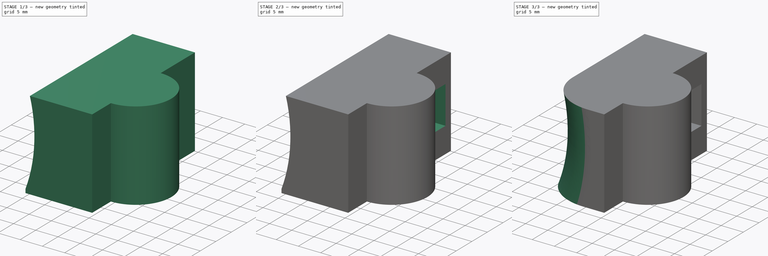
[diagram: build sequence overview — one tinted view per stage of 3, left to right]
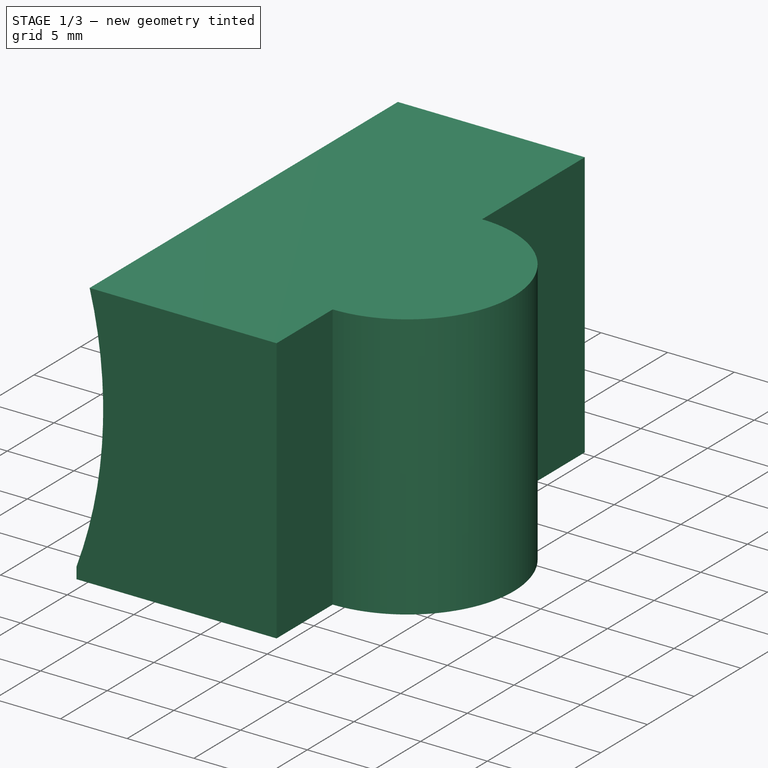
[diagram: stage 1 of 3 — iso view after this stage's code; geometry added in this stage tinted green]
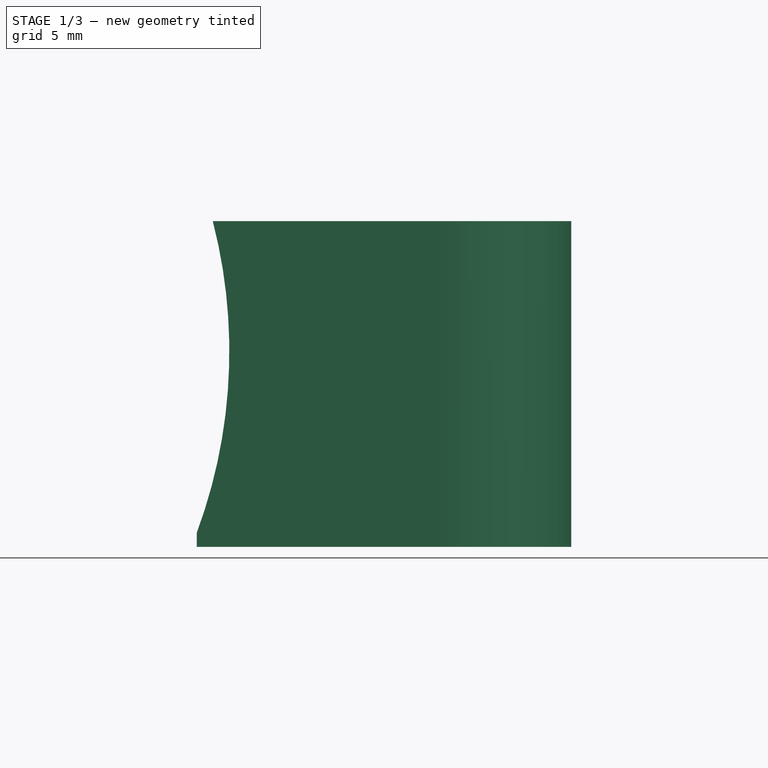
[diagram: stage 1 of 3 — front view after this stage's code; geometry added in this stage tinted green]
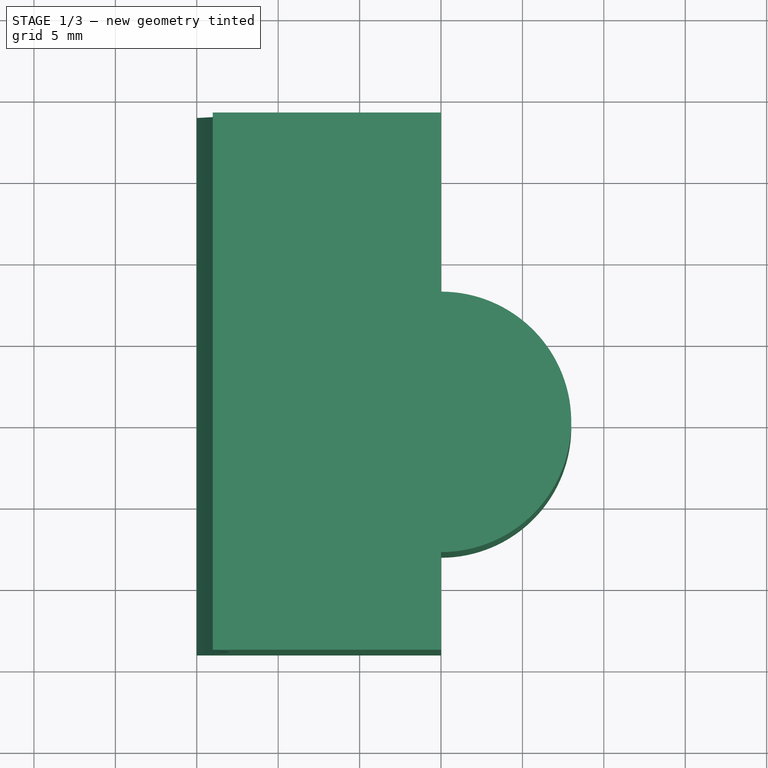
[diagram: stage 1 of 3 — top view after this stage's code; geometry added in this stage tinted green]
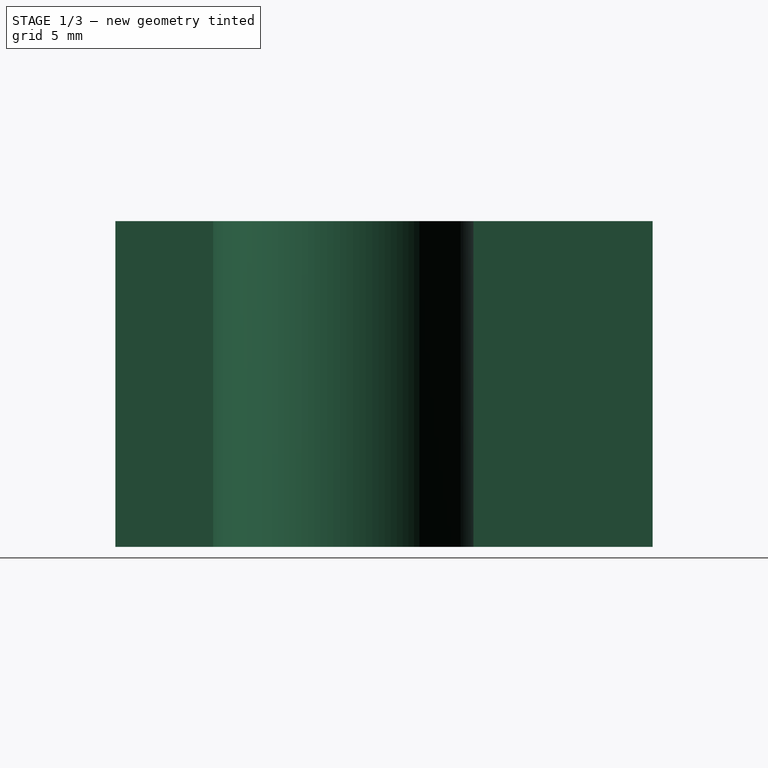
[diagram: stage 1 of 3 — right view after this stage's code; geometry added in this stage tinted green]
FCSTD DOCUMENT  (FreeCAD 0.16R6712 (Git))
Label: steering_hindge_mount_v2
License: All rights reserved
LicenseURL: http://en.wikipedia.org/wiki/All_rights_reserved
objects: Sketcher::SketchObject×4, PartDesign::Pocket×3, PartDesign::Pad×1, PartDesign::Fillet×1
note: 13 computed .brp shape members not serialized (recipe doc carries the construction recipe); baked Part::Feature solids carry a one-line shape summary decoded from their .brp

FEATURE [Sketcher::SketchObject] Sketch
  sketch-geometry (9):
    g0: LineSegment StartX=-15 StartY=-14 StartZ=0 EndX=0 EndY=-14 EndZ=0
    g1: LineSegment StartX=-15 StartY=19 StartZ=0 EndX=0 EndY=19 EndZ=0
    g2: LineSegment StartX=-15 StartY=19 StartZ=0 EndX=-15 EndY=-14 EndZ=0
    g3: LineSegment StartX=0 StartY=19 StartZ=0 EndX=0 EndY=8 EndZ=0
    g4: LineSegment StartX=0 StartY=-14 StartZ=0 EndX=0 EndY=-8 EndZ=0
    g5: Circle [constr] CenterX=0 CenterY=0 CenterZ=0 NormalX=0 NormalY=0 NormalZ=1 Radius=8
    g6: ArcOfCircle CenterX=0 CenterY=0 CenterZ=0 NormalX=0 NormalY=0 NormalZ=1 Radius=8 StartAngle=4.71239 EndAngle=7.85398
    g7: LineSegment [constr] StartX=0 StartY=8 StartZ=0 EndX=0 EndY=0 EndZ=0
    g8: LineSegment [constr] StartX=0 StartY=0 StartZ=0 EndX=0 EndY=-8 EndZ=0
  constraints (24):
    c: Horizontal(g0)
    c: Horizontal(g1)
    c: Vertical(g2)
    c: Coincident(g0,g2)
    c: DistanceY(g2,g2) = 33
    c: Coincident(g3,g1)
    c: Vertical(g3)
    c: Coincident(g4,g0)
    c: Radius(g5) = 8
    c: Coincident(g6,g3)
    c: Coincident(g4,g6)
    c: Coincident(g5,g6)
    c: PointOnObject(g4,g5)
    c: Coincident(g7,g3)
    c: Coincident(g7,g5)
    c: Vertical(g7)
    c: DistanceX(g1,g1) = 15
    c: DistanceY(g3,g3) = 11
    c: Coincident(g8,g5)
    c: Coincident(g8,g4)
    c: Vertical(g8)
    c: Coincident(g1,g2)
    c: Coincident(g5,g-1)
    c: Vertical(g4)
FEATURE [PartDesign::Pad] Pad
  Length = 20
  Length2 = 100
  Sketch = -> Sketch
  Type = 0
FEATURE [Sketcher::SketchObject] Sketch001
  Placement = pos=(0,19,0) rot=(0,0.707107,0.707107;3.14159rad)
  Support = -> Pad [Face6]
  sketch-geometry (5):
    g0: Circle [constr] CenterX=45 CenterY=12 CenterZ=0 NormalX=0 NormalY=0 NormalZ=1 Radius=32
    g1: LineSegment StartX=19.0161 StartY=20 StartZ=0 EndX=19.0161 EndY=1.3e-11 EndZ=0
    g2: LineSegment StartX=19.0161 StartY=1.3e-11 StartZ=0 EndX=15.3352 EndY=1.3e-11 EndZ=0
    g3: LineSegment StartX=19.0161 StartY=20 StartZ=0 EndX=14.0161 EndY=20 EndZ=0
    g4: ArcOfCircle CenterX=45 CenterY=12 CenterZ=0 NormalX=0 NormalY=0 NormalZ=1 Radius=32 StartAngle=2.88891 EndAngle=3.52599
  constraints (16):
    c: Radius(g0) = 32
    c: DistanceX(g-1,g0) = 45
    c: DistanceY(g-1,g0) = 12
    c: Vertical(g1)
    c: Coincident(g2,g1)
    c: Horizontal(g2)
    c: Coincident(g3,g1)
    c: Coincident(g4,g3)
    c: Coincident(g2,g4)
    c: PointOnObject(g2,g0)
    c: Horizontal(g3)
    c: PointOnObject(g3,g0)
    c: Equal(g4,g0)
    c: PointOnObject(g1,g-1)
    c: DistanceY(g1,g1) = 20
    c: DistanceX(g3,g3) = 5
FEATURE [PartDesign::Pocket] Pocket
  Length = 5
  Sketch = -> Sketch001
  Type = 1
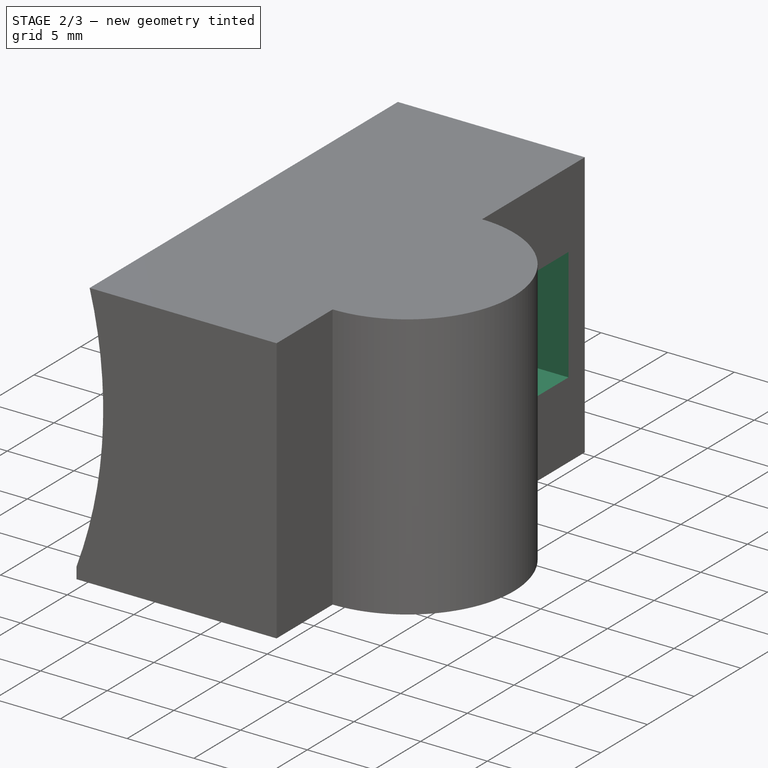
[diagram: stage 2 of 3 — iso view after this stage's code; geometry added in this stage tinted green]
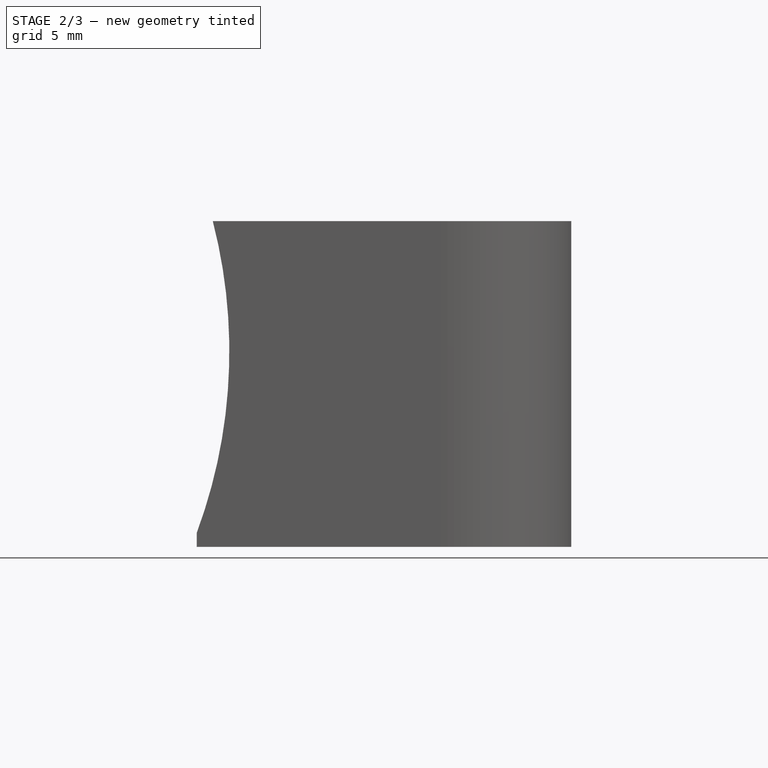
[diagram: stage 2 of 3 — front view after this stage's code; geometry added in this stage tinted green]
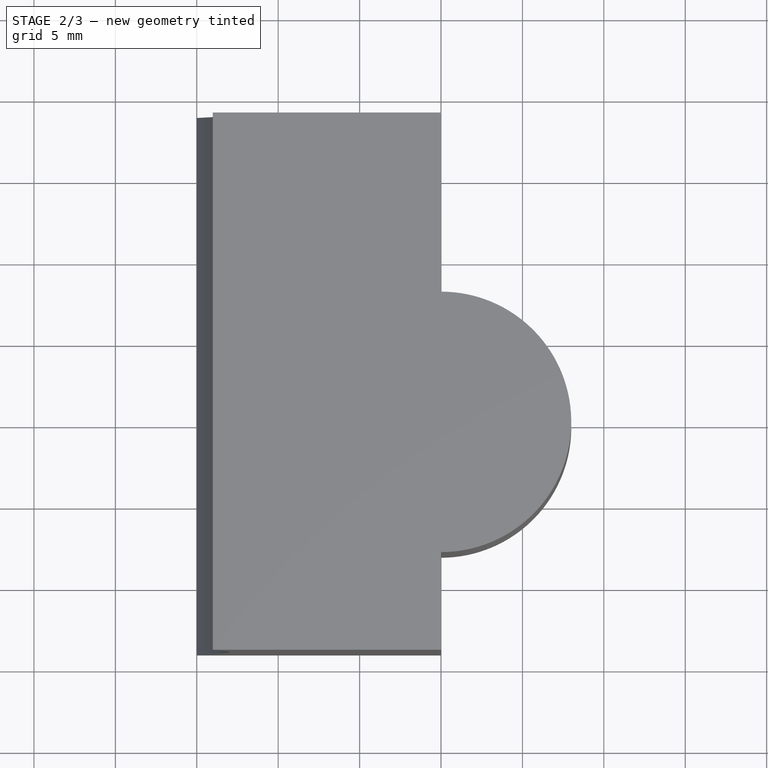
[diagram: stage 2 of 3 — top view after this stage's code; geometry added in this stage tinted green]
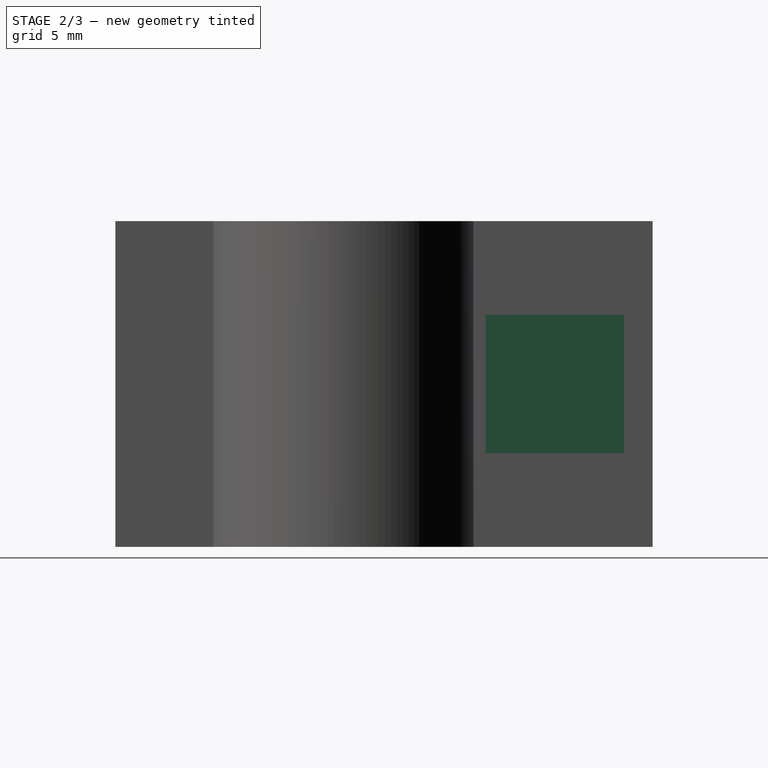
[diagram: stage 2 of 3 — right view after this stage's code; geometry added in this stage tinted green]
FEATURE [Sketcher::SketchObject] Sketch002
  Placement = pos=(0,0,0) rot=(0.57735,0.57735,0.57735;2.0944rad)
  Support = -> Pocket [Face8]
  sketch-geometry (8):
    g0: LineSegment StartX=8.75 StartY=14.25 StartZ=0 EndX=17.25 EndY=14.25 EndZ=0
    g1: LineSegment StartX=17.25 StartY=14.25 StartZ=0 EndX=17.25 EndY=5.75 EndZ=0
    g2: LineSegment StartX=17.25 StartY=5.75 StartZ=0 EndX=8.75 EndY=5.75 EndZ=0
    g3: LineSegment StartX=8.75 StartY=5.75 StartZ=0 EndX=8.75 EndY=14.25 EndZ=0
    g4: LineSegment [constr] StartX=17.25 StartY=14.25 StartZ=0 EndX=13 EndY=10 EndZ=0
    g5: LineSegment [constr] StartX=8.75 StartY=14.25 StartZ=0 EndX=13 EndY=10 EndZ=0
    g6: LineSegment [constr] StartX=17.25 StartY=5.75 StartZ=0 EndX=13 EndY=10 EndZ=0
    g7: LineSegment [constr] StartX=8.75 StartY=5.75 StartZ=0 EndX=13 EndY=10 EndZ=0
  constraints (22):
    c: Coincident(g0,g1)
    c: Coincident(g1,g2)
    c: Coincident(g2,g3)
    c: Coincident(g3,g0)
    c: Horizontal(g0)
    c: Horizontal(g2)
    c: Vertical(g1)
    c: Vertical(g3)
    c: Equal(g2,g1)
    c: DistanceY(g1,g1) = 8.5
    c: Coincident(g4,g0)
    c: Coincident(g5,g0)
    c: Coincident(g6,g1)
    c: Coincident(g7,g2)
    c: Coincident(g4,g5)
    c: Coincident(g4,g6)
    c: Coincident(g4,g7)
    c: Equal(g6,g4)
    c: Equal(g4,g5)
    c: Equal(g5,g7)
    c: DistanceX(g-1,g4) = 13
    c: DistanceY(g-1,g4) = 10
FEATURE [PartDesign::Pocket] Pocket001
  Length = 6
  Sketch = -> Sketch002
  Type = 0
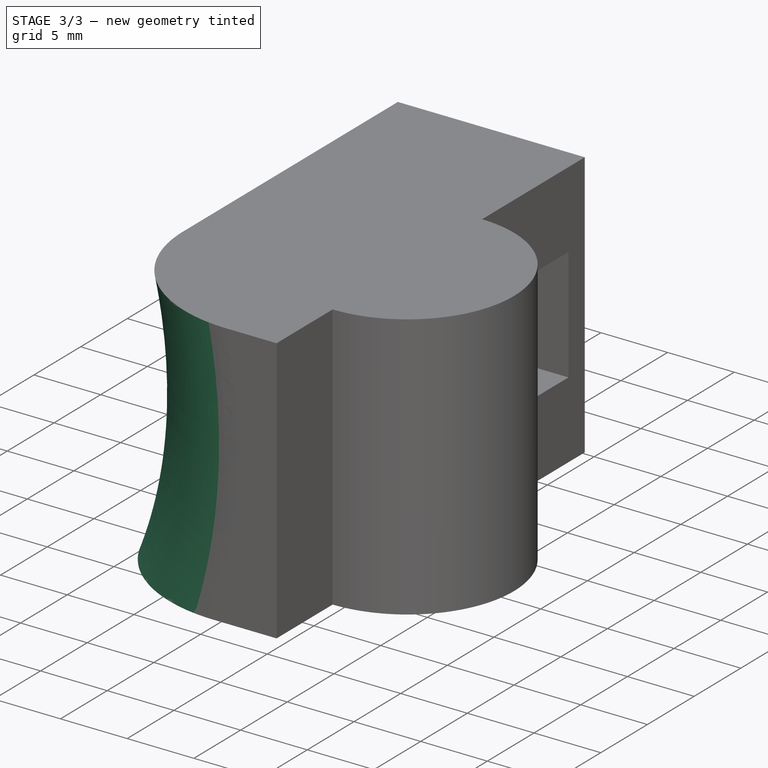
[diagram: stage 3 of 3 — iso view after this stage's code; geometry added in this stage tinted green]
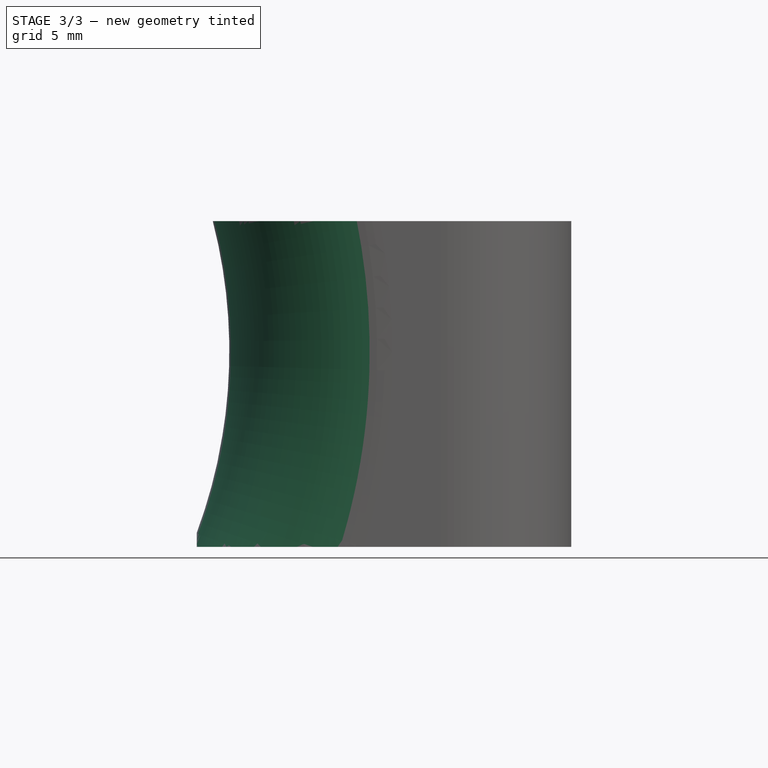
[diagram: stage 3 of 3 — front view after this stage's code; geometry added in this stage tinted green]
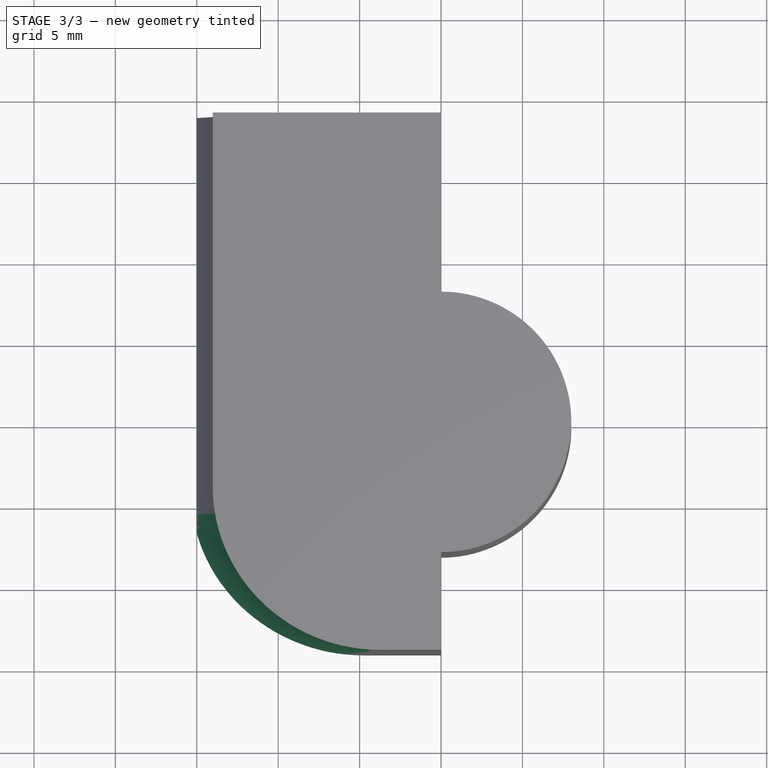
[diagram: stage 3 of 3 — top view after this stage's code; geometry added in this stage tinted green]
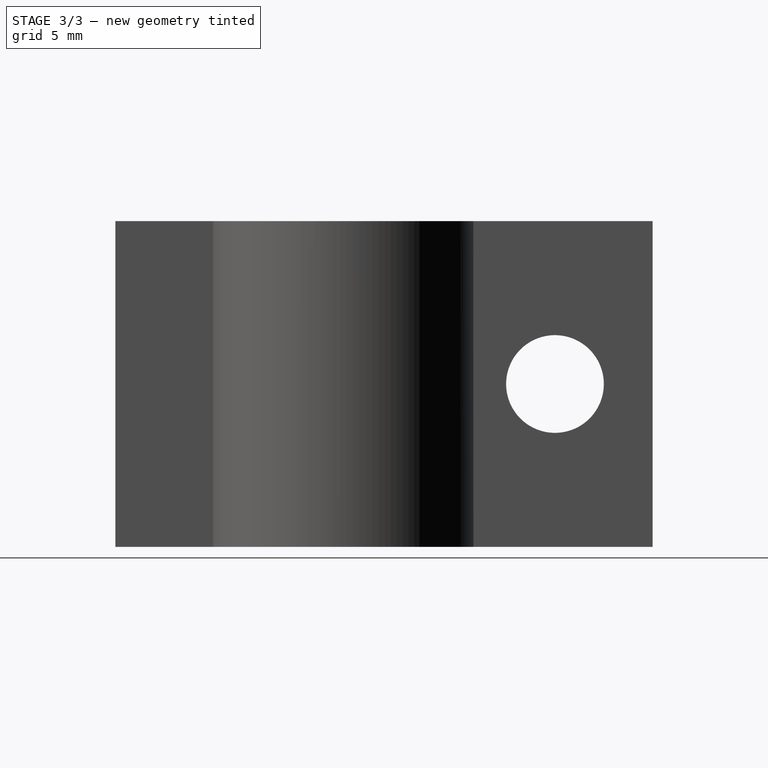
[diagram: stage 3 of 3 — right view after this stage's code; geometry added in this stage tinted green]
FEATURE [Sketcher::SketchObject] Sketch003
  Placement = pos=(0,0,0) rot=(0.57735,0.57735,0.57735;2.0944rad)
  Support = -> Pocket001 [Face8]
  sketch-geometry (1):
    g0: Circle CenterX=13 CenterY=10 CenterZ=0 NormalX=0 NormalY=0 NormalZ=1 Radius=3
  constraints (3):
    c: DistanceX(g-1,g0) = 13
    c: DistanceY(g-1,g0) = 10
    c: Radius(g0) = 3
FEATURE [PartDesign::Pocket] Pocket002
  Length = 5
  Sketch = -> Sketch003
  Type = 1
FEATURE [PartDesign::Fillet] Fillet
  Base = -> Pocket002 [Edge12]
  Radius = 10
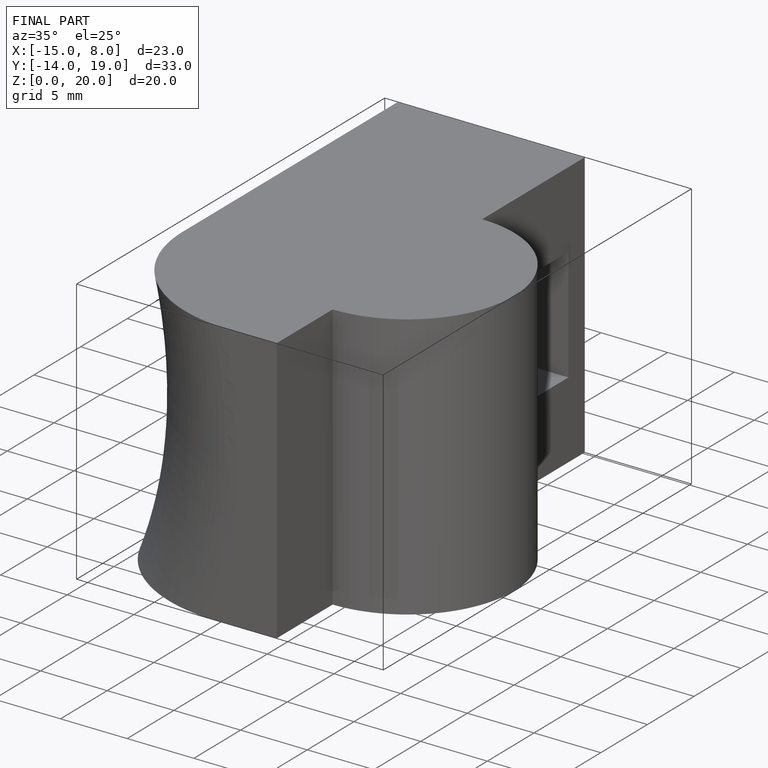
[diagram: finished part — iso view with bounding-box wireframe]
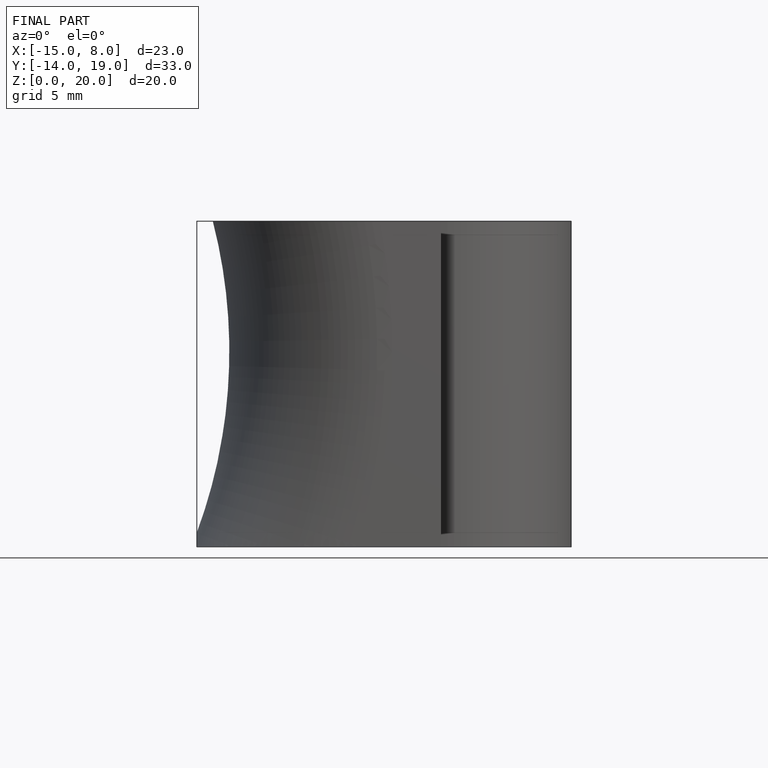
[diagram: finished part — front view with bounding-box wireframe]
